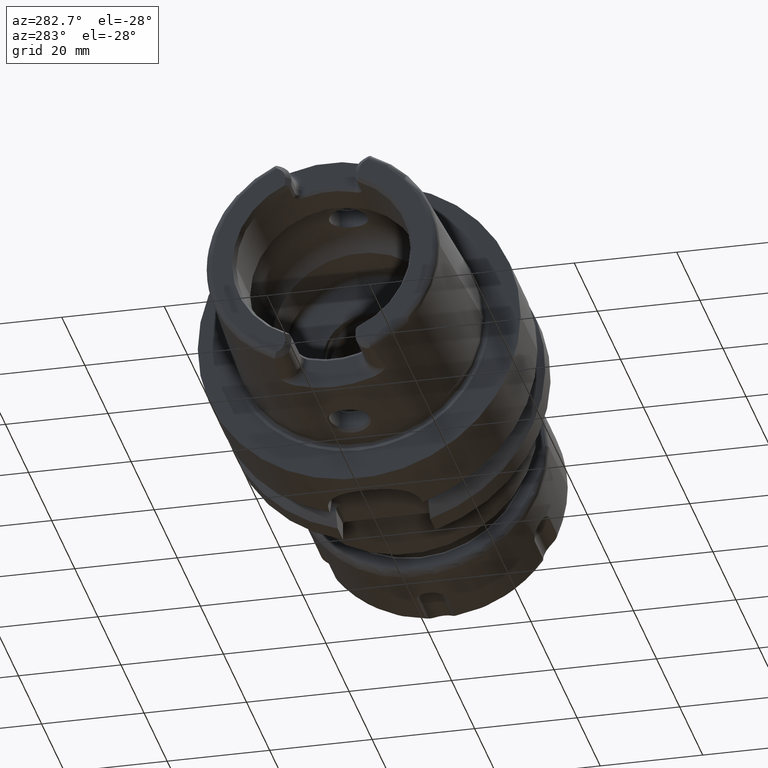
[diagram: clean part render]
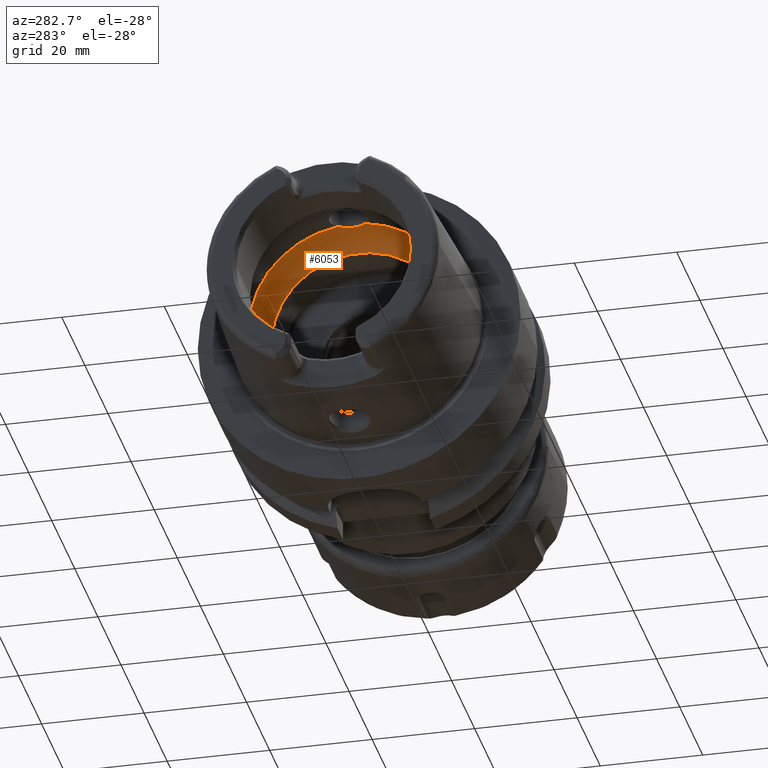
[diagram: same view with one face highlighted and labeled with its STEP entity id]
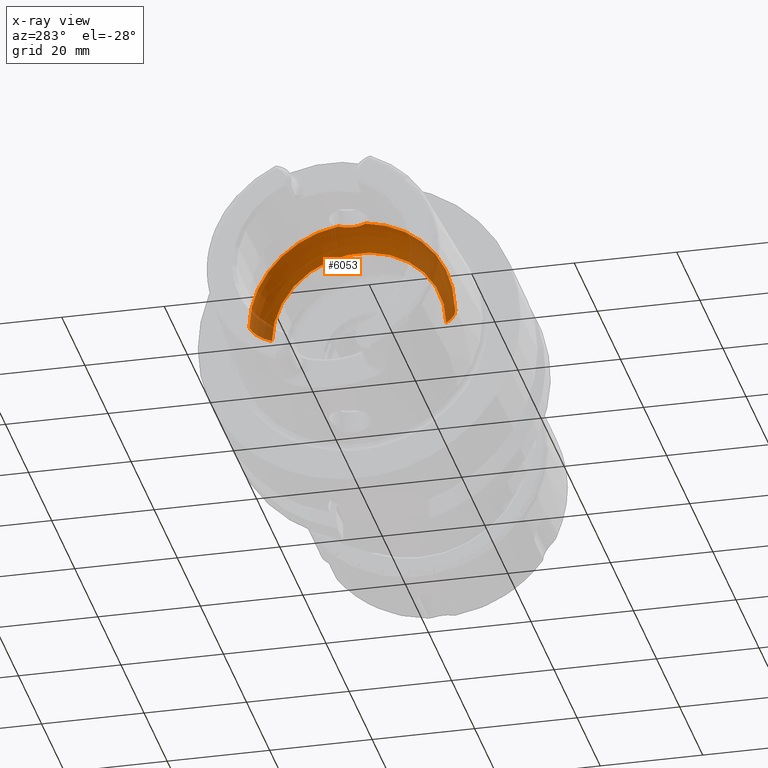
[diagram: x-ray of the same camera — body ghosted, the highlighted face saturated]
A machine part, auxiliary view. The second image highlights one B-rep face of the part: STEP entity #6053.
The next image is the same camera in x-ray: the body ghosted, the highlighted face saturated — about 26% of this face is hidden behind the body in this view.
In plain terms, the highlighted toroidal blend (fillet) surface has major radius 12 mm and minor (blend) radius 8 mm.
Its self-contained STEP definition (entity closure, byte-faithful):
#2286=CARTESIAN_POINT('',(-5.25E0,0.E0,1.992470689575E1));
#2287=CARTESIAN_POINT('',(-5.25E0,1.634249880127E-1,1.992470689575E1));
#2288=CARTESIAN_POINT('',(-5.271317000323E0,4.905125142286E-1,
1.992366860007E1));
#2289=CARTESIAN_POINT('',(-5.367938073203E0,9.753406287590E-1,
1.991846757388E1));
#2290=CARTESIAN_POINT('',(-5.525913254439E0,1.440181253243E0,1.990841194030E1));
#2291=CARTESIAN_POINT('',(-5.745012466850E0,1.883704211740E0,1.989126222791E1));
#2292=CARTESIAN_POINT('',(-6.017092970824E0,2.289932260455E0,1.986481338490E1));
#2293=CARTESIAN_POINT('',(-6.231037578916E0,2.534045566496E0,1.983915065875E1));
#2294=CARTESIAN_POINT('',(-6.344997998398E0,2.648294615690E0,1.982388800484E1));
#2296=CARTESIAN_POINT('',(-6.344997998398E0,-2.648294615690E0,
1.982388800484E1));
#2297=CARTESIAN_POINT('',(-6.231045843136E0,-2.534053851646E0,
1.983914955193E1));
#2298=CARTESIAN_POINT('',(-6.017093742818E0,-2.289943440357E0,
1.986481395775E1));
#2299=CARTESIAN_POINT('',(-5.744901596897E0,-1.883527876206E0,
1.989127237006E1));
#2300=CARTESIAN_POINT('',(-5.525828432433E0,-1.439963272778E0,
1.990841763195E1));
#2301=CARTESIAN_POINT('',(-5.367908372542E0,-9.752317929729E-1,
1.991846926373E1));
#2302=CARTESIAN_POINT('',(-5.271289109403E0,-4.903031116233E-1,
1.992367002777E1));
#2303=CARTESIAN_POINT('',(-5.25E0,-1.633414179458E-1,1.992470689575E1));
#2304=CARTESIAN_POINT('',(-5.25E0,0.E0,1.992470689575E1));
#2306=CARTESIAN_POINT('',(-1.E-1,0.E0,0.E0));
#2307=DIRECTION('',(1.E0,0.E0,0.E0));
#2308=DIRECTION('',(0.E0,1.E0,0.E0));
#2309=AXIS2_PLACEMENT_3D('',#2306,#2307,#2308);
#2331=CARTESIAN_POINT('',(-6.344997998398E0,0.E0,0.E0));
#2332=DIRECTION('',(1.E0,0.E0,0.E0));
#2333=DIRECTION('',(0.E0,1.E0,0.E0));
#2334=AXIS2_PLACEMENT_3D('',#2331,#2332,#2333);
#2336=CARTESIAN_POINT('',(-6.344997998398E0,0.E0,0.E0));
#2337=DIRECTION('',(1.E0,0.E0,0.E0));
#2338=DIRECTION('',(0.E0,-1.324147307845E-1,9.911944002421E-1));
#2339=AXIS2_PLACEMENT_3D('',#2336,#2337,#2338);
#2429=CARTESIAN_POINT('',(-6.344997998398E0,1.2E1,0.E0));
#2430=DIRECTION('',(0.E0,0.E0,1.E0));
#2431=DIRECTION('',(7.806247497998E-1,6.25E-1,0.E0));
#2432=AXIS2_PLACEMENT_3D('',#2429,#2430,#2431);
#2439=CARTESIAN_POINT('',(-6.344997998398E0,-1.2E1,0.E0));
#2440=DIRECTION('',(0.E0,0.E0,-1.E0));
#2441=DIRECTION('',(7.806247497998E-1,-6.25E-1,0.E0));
#2442=AXIS2_PLACEMENT_3D('',#2439,#2440,#2441);
#2708=CARTESIAN_POINT('',(-1.E-1,1.7E1,0.E0));
#2709=VERTEX_POINT('',#2708);
#2710=CARTESIAN_POINT('',(-6.344997998398E0,2.E1,0.E0));
#2711=VERTEX_POINT('',#2710);
#2720=CARTESIAN_POINT('',(-1.E-1,-1.7E1,0.E0));
#2721=VERTEX_POINT('',#2720);
#2722=CARTESIAN_POINT('',(-6.344997998398E0,-2.E1,0.E0));
#2723=VERTEX_POINT('',#2722);
#2891=VERTEX_POINT('',#2286);
#2892=VERTEX_POINT('',#2294);
#2893=VERTEX_POINT('',#2296);
#6034=CARTESIAN_POINT('',(-6.344997998398E0,0.E0,0.E0));
#6035=DIRECTION('',(1.E0,0.E0,0.E0));
#6036=DIRECTION('',(0.E0,-1.E0,0.E0));
#6037=AXIS2_PLACEMENT_3D('',#6034,#6035,#6036);
#6038=TOROIDAL_SURFACE('',#6037,1.2E1,8.E0);
#6039=ORIENTED_EDGE('',*,*,#6011,.F.);
#6040=ORIENTED_EDGE('',*,*,#5777,.F.);
#6042=ORIENTED_EDGE('',*,*,#6041,.T.);
#6044=ORIENTED_EDGE('',*,*,#6043,.F.);
#6046=ORIENTED_EDGE('',*,*,#6045,.F.);
#6048=ORIENTED_EDGE('',*,*,#6047,.T.);
#6050=ORIENTED_EDGE('',*,*,#6049,.T.);
#6051=EDGE_LOOP('',(#6039,#6040,#6042,#6044,#6046,#6048,#6050));
#6052=FACE_OUTER_BOUND('',#6051,.F.);
#6053=ADVANCED_FACE('',(#6052),#6038,.F.);
#2295=B_SPLINE_CURVE_WITH_KNOTS('',3,(#2286,#2287,#2288,#2289,#2290,#2291,#2292,
#2293,#2294),.UNSPECIFIED.,.F.,.F.,(4,1,1,1,1,1,4),(0.E0,1.666666666667E-1,
3.333333333333E-1,5.E-1,6.666666666667E-1,8.333333333333E-1,1.E0),
.UNSPECIFIED.);
#2305=B_SPLINE_CURVE_WITH_KNOTS('',3,(#2296,#2297,#2298,#2299,#2300,#2301,#2302,
#2303,#2304),.UNSPECIFIED.,.F.,.F.,(4,1,1,1,1,1,4),(0.E0,1.666666666667E-1,
3.333333333333E-1,5.E-1,6.666666666667E-1,8.333333333333E-1,1.E0),
.UNSPECIFIED.);
#2310=CIRCLE('',#2309,1.7E1);
#2335=CIRCLE('',#2334,2.E1);
#2340=CIRCLE('',#2339,2.E1);
#2433=CIRCLE('',#2432,8.E0);
#2443=CIRCLE('',#2442,8.E0);
#5777=EDGE_CURVE('',#2893,#2891,#2305,.T.);
#6011=EDGE_CURVE('',#2891,#2892,#2295,.T.);
#6041=EDGE_CURVE('',#2893,#2723,#2340,.T.);
#6043=EDGE_CURVE('',#2721,#2723,#2443,.T.);
#6045=EDGE_CURVE('',#2709,#2721,#2310,.T.);
#6047=EDGE_CURVE('',#2709,#2711,#2433,.T.);
#6049=EDGE_CURVE('',#2711,#2892,#2335,.T.);